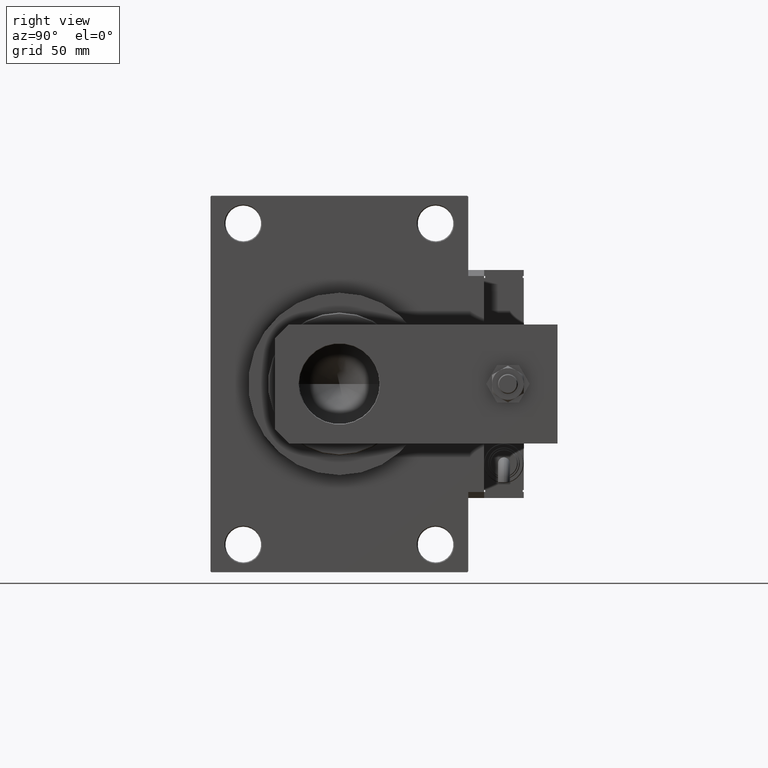
[diagram: clean part render]
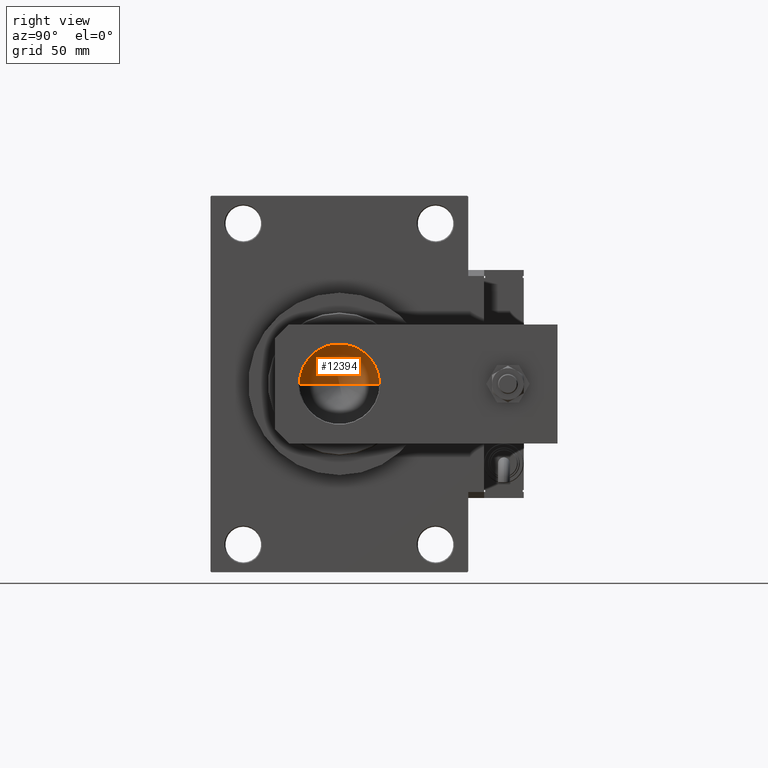
[diagram: same view with one face highlighted and labeled with its STEP entity id]
A machine part, right view. The second image highlights one B-rep face of the part: STEP entity #12394.
In plain terms, the highlighted conical surface has half-angle 59 deg.
Its self-contained STEP definition (entity closure, byte-faithful):
#625 = DIRECTION ( 'NONE',  ( 1.000000000000000000, 0.000000000000000000, 0.000000000000000000 ) ) ;
#2352 = ORIENTED_EDGE ( 'NONE', *, *, #36349, .T. ) ;
#7412 = VECTOR ( 'NONE', #18392, 1000.000000000000000 ) ;
#7763 = VERTEX_POINT ( 'NONE', #48153 ) ;
#9875 = CARTESIAN_POINT ( 'NONE',  ( 20.24999999999998934, 0.000000000000000000, 107.0000000000000142 ) ) ;
#10802 = VERTEX_POINT ( 'NONE', #9875 ) ;
#11925 = CONICAL_SURFACE ( 'NONE', #18853, 20.24999999999998934, 1.029744258676653867 ) ;
#12328 = CARTESIAN_POINT ( 'NONE',  ( 20.24999999999998934, 0.000000000000000000, 107.0000000000000142 ) ) ;
#12394 = ADVANCED_FACE ( 'NONE', ( #28664 ), #11925, .F. ) ;
#16318 = CIRCLE ( 'NONE', #46556, 20.24999999999998934 ) ;
#17928 = DIRECTION ( 'NONE',  ( -0.000000000000000000, -0.000000000000000000, 1.000000000000000000 ) ) ;
#18392 = DIRECTION ( 'NONE',  ( -0.8571673007021120005, 1.049727191138618326E-16, 0.5150380749100547106 ) ) ;
#18853 = AXIS2_PLACEMENT_3D ( 'NONE', #33525, #45697, #46239 ) ;
#22177 = CARTESIAN_POINT ( 'NONE',  ( -20.24999999999998934, 2.479909768273389117E-15, 107.0000000000000142 ) ) ;
#24200 = CARTESIAN_POINT ( 'NONE',  ( -20.24999999999998934, 2.479909768273389117E-15, 107.0000000000000142 ) ) ;
#24355 = EDGE_LOOP ( 'NONE', ( #31598, #2352, #27656 ) ) ;
#27656 = ORIENTED_EDGE ( 'NONE', *, *, #47341, .T. ) ;
#28664 = FACE_OUTER_BOUND ( 'NONE', #24355, .T. ) ;
#28810 = DIRECTION ( 'NONE',  ( 0.8571673007021120005, 0.000000000000000000, 0.5150380749100547106 ) ) ;
#31598 = ORIENTED_EDGE ( 'NONE', *, *, #35450, .F. ) ;
#32881 = LINE ( 'NONE', #12328, #49648 ) ;
#33525 = CARTESIAN_POINT ( 'NONE',  ( 0.000000000000000000, 0.000000000000000000, 107.0000000000000142 ) ) ;
#34068 = LINE ( 'NONE', #22177, #7412 ) ;
#35450 = EDGE_CURVE ( 'NONE', #7763, #10802, #32881, .T. ) ;
#36349 = EDGE_CURVE ( 'NONE', #7763, #43999, #34068, .T. ) ;
#43999 = VERTEX_POINT ( 'NONE', #24200 ) ;
#45500 = CARTESIAN_POINT ( 'NONE',  ( 0.000000000000000000, 0.000000000000000000, 107.0000000000000142 ) ) ;
#45697 = DIRECTION ( 'NONE',  ( -0.000000000000000000, -0.000000000000000000, 1.000000000000000000 ) ) ;
#46239 = DIRECTION ( 'NONE',  ( 1.000000000000000000, 0.000000000000000000, 0.000000000000000000 ) ) ;
#46556 = AXIS2_PLACEMENT_3D ( 'NONE', #45500, #17928, #625 ) ;
#47341 = EDGE_CURVE ( 'NONE', #43999, #10802, #16318, .T. ) ;
#48153 = CARTESIAN_POINT ( 'NONE',  ( -1.844323935812429270E-14, 0.000000000000000000, 94.83257246469190704 ) ) ;
#49648 = VECTOR ( 'NONE', #28810, 1000.000000000000000 ) ;